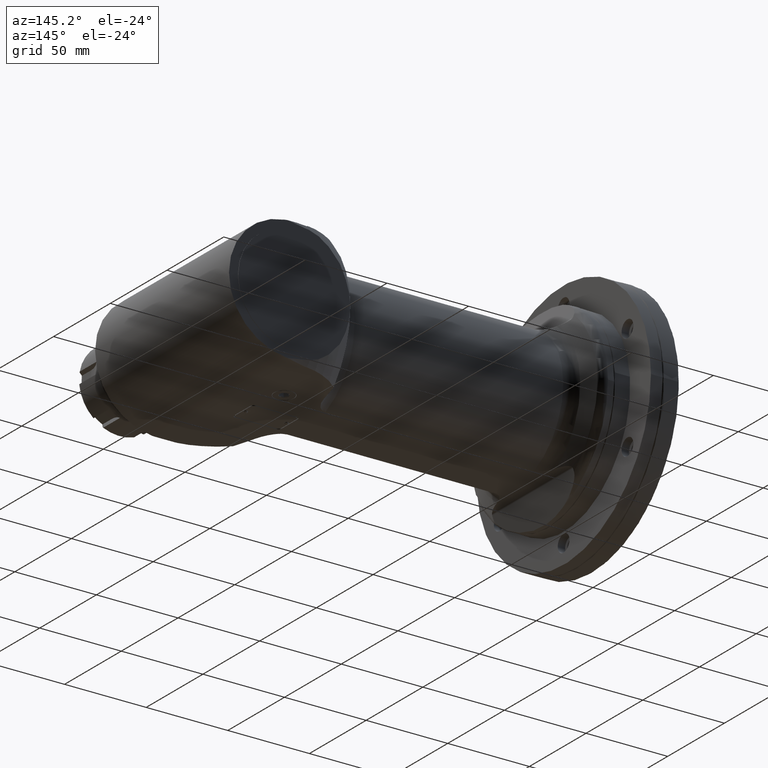
[diagram: clean part render]
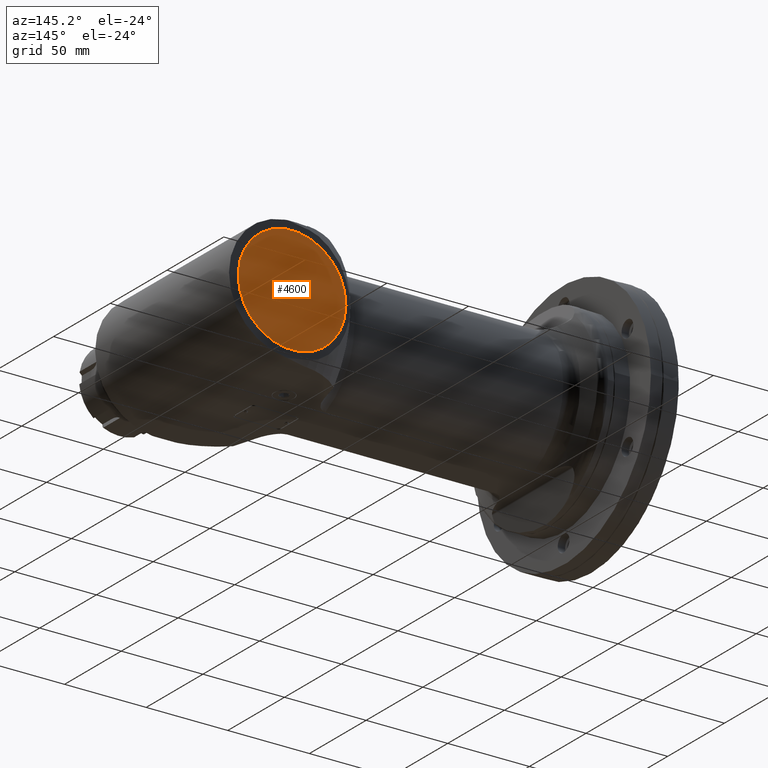
[diagram: same view with one face highlighted and labeled with its STEP entity id]
A machine part, auxiliary view. The second image highlights one B-rep face of the part: STEP entity #4600.
In plain terms, the highlighted planar face has unit normal (0, 1, 0).
Its self-contained STEP definition (entity closure, byte-faithful):
#537=FACE_OUTER_BOUND('',#846,.T.);
#846=EDGE_LOOP('',(#3704));
#1198=CIRCLE('',#5083,33.);
#2088=VERTEX_POINT('',#8092);
#2661=EDGE_CURVE('',#2088,#2088,#1198,.T.);
#3704=ORIENTED_EDGE('',*,*,#2661,.T.);
#4383=PLANE('',#5084);
#4600=ADVANCED_FACE('',(#537),#4383,.T.);
#5083=AXIS2_PLACEMENT_3D('',#8093,#6056,#6057);
#5084=AXIS2_PLACEMENT_3D('',#8095,#6059,#6060);
#6056=DIRECTION('center_axis',(0.,1.,0.));
#6057=DIRECTION('ref_axis',(-1.,0.,0.));
#6059=DIRECTION('center_axis',(0.,1.,0.));
#6060=DIRECTION('ref_axis',(-1.,0.,0.));
#8092=CARTESIAN_POINT('',(33.,59.2,-6.78661402582563E-14));
#8093=CARTESIAN_POINT('Origin',(0.,59.2,-6.382480582107E-14));
#8095=CARTESIAN_POINT('Origin',(-110.,59.2,-6.382480582107E-14));